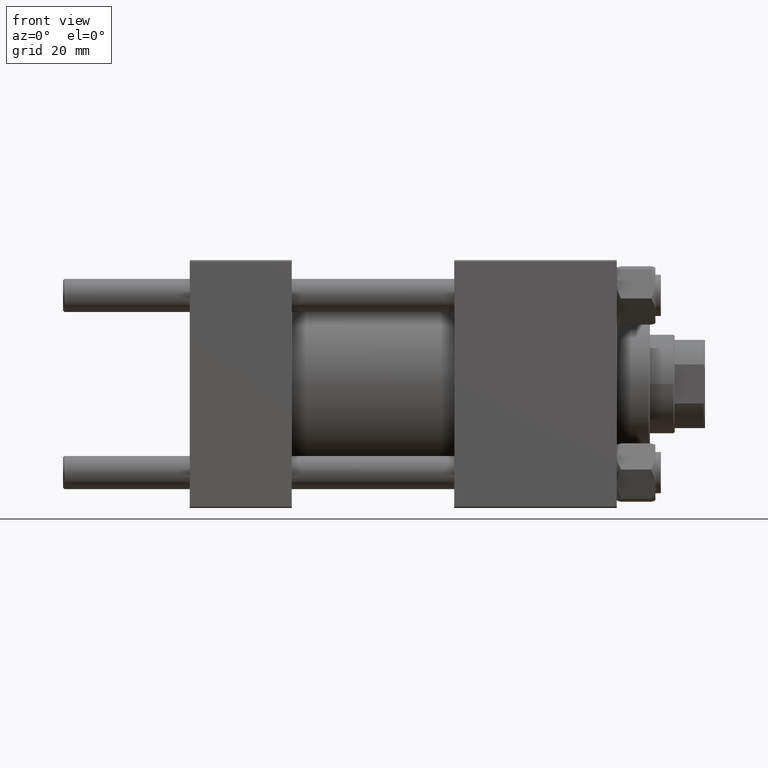
[diagram: clean part render]
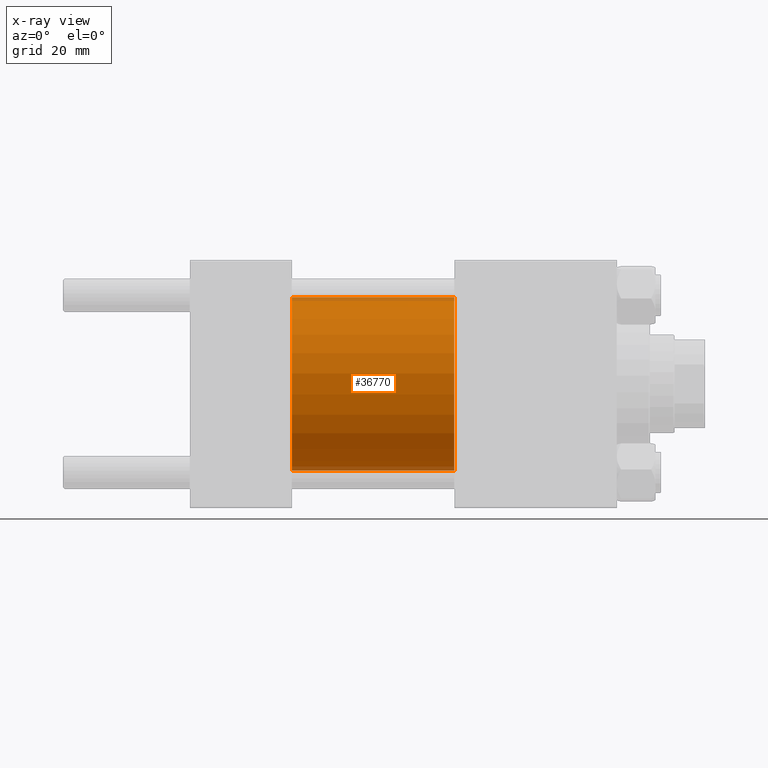
[diagram: x-ray — body ghosted, one internal face saturated and labeled with its STEP entity id]
A machine part, front view, then the same camera in x-ray: the body is ghosted and one INTERNAL B-rep face — a face not visible from any outside direction — is saturated and labeled: STEP entity #36770.
In plain terms, the highlighted cylindrical surface (partial cylindrical patch) has radius 31.5 mm, axis along (-1, -0, -0).
Its self-contained STEP definition (entity closure, byte-faithful):
#167 = LINE ( 'NONE', #18623, #1874 ) ;
#1874 = VECTOR ( 'NONE', #7259, 1000.000000000000000 ) ;
#2662 = EDGE_CURVE ( 'NONE', #18372, #27324, #6581, .T. ) ;
#3527 = CYLINDRICAL_SURFACE ( 'NONE', #18926, 31.50000000000000000 ) ;
#4002 = DIRECTION ( 'NONE',  ( -1.000000000000000000, -0.000000000000000000, -0.000000000000000000 ) ) ;
#4264 = ORIENTED_EDGE ( 'NONE', *, *, #29867, .F. ) ;
#6581 = CIRCLE ( 'NONE', #7358, 31.50000000000000000 ) ;
#7057 = DIRECTION ( 'NONE',  ( 0.000000000000000000, 0.000000000000000000, 1.000000000000000000 ) ) ;
#7259 = DIRECTION ( 'NONE',  ( -1.000000000000000000, -0.000000000000000000, -0.000000000000000000 ) ) ;
#7358 = AXIS2_PLACEMENT_3D ( 'NONE', #49221, #44923, #41619 ) ;
#7587 = ORIENTED_EDGE ( 'NONE', *, *, #27271, .T. ) ;
#11564 = CARTESIAN_POINT ( 'NONE',  ( 96.00000000000000000, 3.857637417314162689E-15, -31.50000000000000000 ) ) ;
#11776 = CARTESIAN_POINT ( 'NONE',  ( 37.00000000000000000, 0.000000000000000000, 31.50000000000000000 ) ) ;
#12091 = ORIENTED_EDGE ( 'NONE', *, *, #2662, .T. ) ;
#14210 = EDGE_CURVE ( 'NONE', #18372, #39322, #167, .T. ) ;
#15050 = VECTOR ( 'NONE', #4002, 1000.000000000000000 ) ;
#16345 = DIRECTION ( 'NONE',  ( 1.000000000000000000, 0.000000000000000000, 0.000000000000000000 ) ) ;
#16841 = VERTEX_POINT ( 'NONE', #41095 ) ;
#18372 = VERTEX_POINT ( 'NONE', #20504 ) ;
#18623 = CARTESIAN_POINT ( 'NONE',  ( 96.00000000000000000, 0.000000000000000000, 31.50000000000000000 ) ) ;
#18926 = AXIS2_PLACEMENT_3D ( 'NONE', #41640, #22695, #7057 ) ;
#20504 = CARTESIAN_POINT ( 'NONE',  ( 96.00000000000000000, 0.000000000000000000, 31.50000000000000000 ) ) ;
#22695 = DIRECTION ( 'NONE',  ( -1.000000000000000000, -0.000000000000000000, -0.000000000000000000 ) ) ;
#23645 = CARTESIAN_POINT ( 'NONE',  ( 96.00000000000000000, 3.857637417314162689E-15, -31.50000000000000000 ) ) ;
#27271 = EDGE_CURVE ( 'NONE', #27324, #16841, #35529, .T. ) ;
#27324 = VERTEX_POINT ( 'NONE', #11564 ) ;
#28004 = CIRCLE ( 'NONE', #32042, 31.50000000000000000 ) ;
#29867 = EDGE_CURVE ( 'NONE', #39322, #16841, #28004, .T. ) ;
#30761 = FACE_OUTER_BOUND ( 'NONE', #34576, .T. ) ;
#31709 = DIRECTION ( 'NONE',  ( 0.000000000000000000, 0.000000000000000000, -1.000000000000000000 ) ) ;
#32042 = AXIS2_PLACEMENT_3D ( 'NONE', #35519, #16345, #31709 ) ;
#34576 = EDGE_LOOP ( 'NONE', ( #12091, #7587, #4264, #38926 ) ) ;
#35519 = CARTESIAN_POINT ( 'NONE',  ( 37.00000000000000000, 0.000000000000000000, 0.000000000000000000 ) ) ;
#35529 = LINE ( 'NONE', #23645, #15050 ) ;
#36770 = ADVANCED_FACE ( 'NONE', ( #30761 ), #3527, .F. ) ;
#38926 = ORIENTED_EDGE ( 'NONE', *, *, #14210, .F. ) ;
#39322 = VERTEX_POINT ( 'NONE', #11776 ) ;
#41095 = CARTESIAN_POINT ( 'NONE',  ( 37.00000000000000000, 3.857637417314162689E-15, -31.50000000000000000 ) ) ;
#41619 = DIRECTION ( 'NONE',  ( 0.000000000000000000, 0.000000000000000000, -1.000000000000000000 ) ) ;
#41640 = CARTESIAN_POINT ( 'NONE',  ( 96.00000000000000000, 0.000000000000000000, 0.000000000000000000 ) ) ;
#44923 = DIRECTION ( 'NONE',  ( 1.000000000000000000, 0.000000000000000000, 0.000000000000000000 ) ) ;
#49221 = CARTESIAN_POINT ( 'NONE',  ( 96.00000000000000000, 0.000000000000000000, 0.000000000000000000 ) ) ;